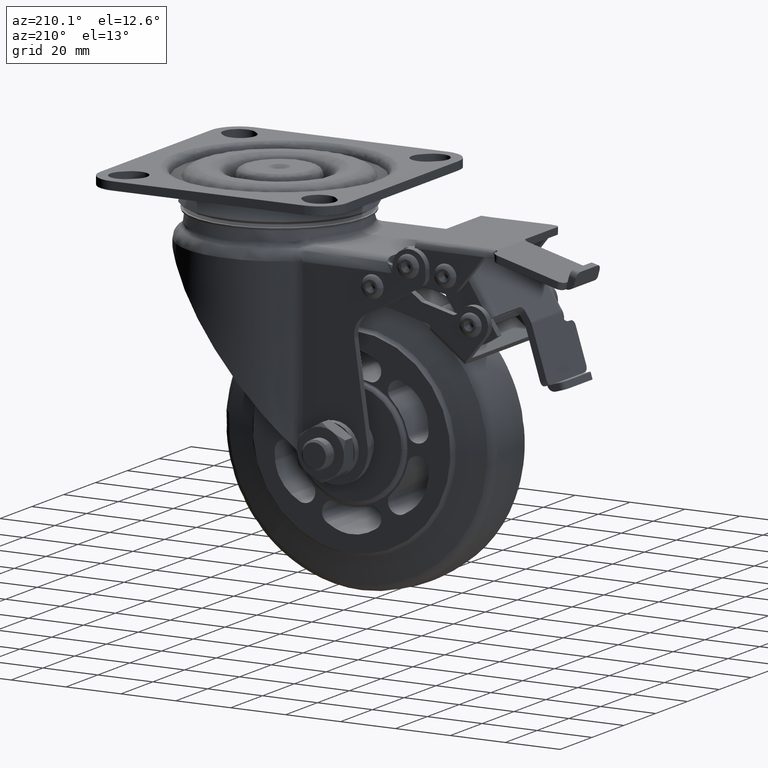
[diagram: clean part render]
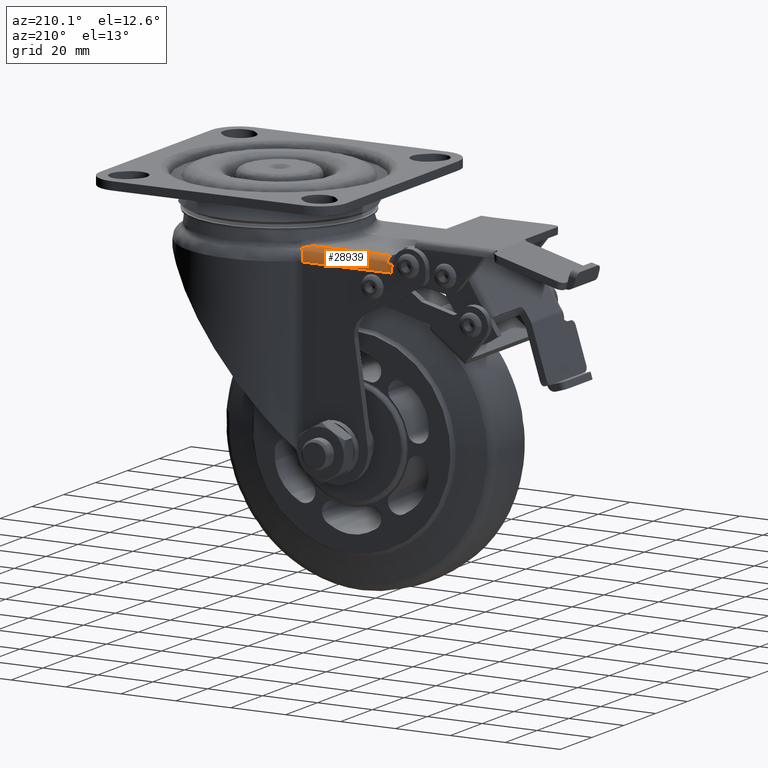
[diagram: same view with one face highlighted and labeled with its STEP entity id]
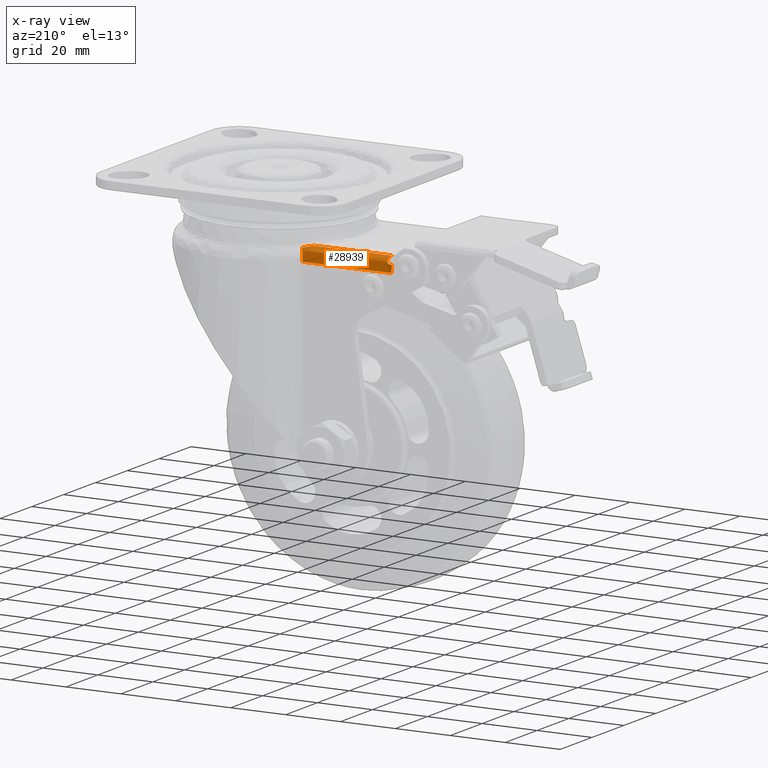
[diagram: x-ray of the same camera — body ghosted, the highlighted face saturated]
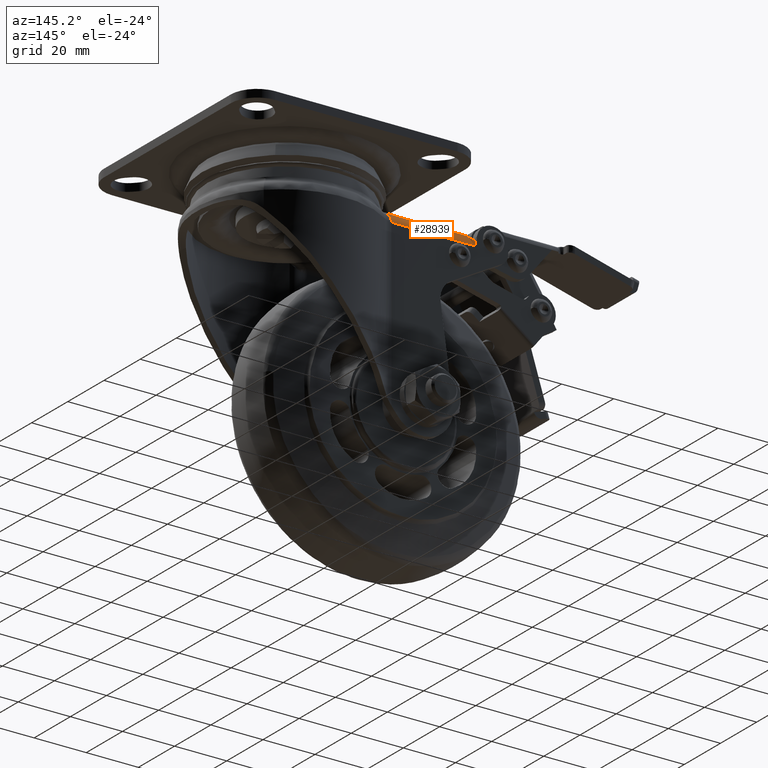
[diagram: same view with one face highlighted and labeled with its STEP entity id]
A machine part, auxiliary view. The second image highlights one B-rep face of the part: STEP entity #28939.
The next image is the same camera in x-ray: the body ghosted, the highlighted face saturated — about 0% of this face is hidden behind the body in this view.
A second angle (auxiliary view) of the same face is appended — the face is thin or edge-on in the first view.
In plain terms, the highlighted face is a freeform B-spline surface patch.
Its self-contained STEP definition (entity closure, byte-faithful):
#25044=CARTESIAN_POINT('',(13.384402241707100,23.221841364482451,62.613233633667093));
#25045=VERTEX_POINT('',#25044);
#25179=CARTESIAN_POINT('',(11.775535386729819,25.500000000000000,58.699997000000003));
#25180=VERTEX_POINT('',#25179);
#25189=CARTESIAN_POINT('',(13.384402241707100,23.221841364482451,62.613233633667093));
#25190=CARTESIAN_POINT('',(13.269976918085600,23.378054318299199,62.524539686699548));
#25191=CARTESIAN_POINT('',(13.159514681548330,23.530096361075351,62.425892284808747));
#25192=CARTESIAN_POINT('',(12.999891339185430,23.751353477263379,62.262085553162578));
#25193=CARTESIAN_POINT('',(12.947697659267980,23.823968380966729,62.204837103572949));
#25194=CARTESIAN_POINT('',(12.845393079961809,23.966786357419839,62.084798364591478));
#25195=CARTESIAN_POINT('',(12.795363592241250,24.036877101986750,62.022078367020903));
#25196=CARTESIAN_POINT('',(12.650040561311160,24.241122448802500,61.827378306874273));
#25197=CARTESIAN_POINT('',(12.558969520364570,24.370005734275129,61.688289156557452));
#25198=CARTESIAN_POINT('',(12.388744224433619,24.612185905648509,61.390525134962381));
#25199=CARTESIAN_POINT('',(12.309582341451870,24.725494989337019,61.231864614611297));
#25200=CARTESIAN_POINT('',(12.200494583239360,24.882327424364640,60.977594506891883));
#25201=CARTESIAN_POINT('',(12.165614110343840,24.932600710405900,60.889714661694008));
#25202=CARTESIAN_POINT('',(12.100297797848279,25.026932773232350,60.710972938515162));
#25203=CARTESIAN_POINT('',(12.069773346931420,25.071117839270631,60.619965637934243));
#25204=CARTESIAN_POINT('',(11.984591773807789,25.194632665282601,60.342000937529221));
#25205=CARTESIAN_POINT('',(11.936290970820060,25.264969319042841,60.150127098594353));
#25206=CARTESIAN_POINT('',(11.877124765235550,25.351301481772371,59.851902188603397));
#25207=CARTESIAN_POINT('',(11.859625210794629,25.376872377990271,59.750752026742440));
#25208=CARTESIAN_POINT('',(11.836867907254099,25.410153923023689,59.596276454242791));
#25209=CARTESIAN_POINT('',(11.829852843538390,25.420418592466110,59.544216320364448));
#25210=CARTESIAN_POINT('',(11.817111683936471,25.439068847928919,59.439912236255893));
#25211=CARTESIAN_POINT('',(11.811376874647010,25.447467153118701,59.387629782881270));
#25212=CARTESIAN_POINT('',(11.785868122354410,25.484834078335538,59.125567257911797));
#25213=CARTESIAN_POINT('',(11.775535386729819,25.499999999999989,58.913846802860917));
#25214=CARTESIAN_POINT('',(11.775535386729819,25.500000000000000,58.699997000000003));
#25215=B_SPLINE_CURVE_WITH_KNOTS('',3,(#25189,#25190,#25191,#25192,#25193,#25194,#25195,#25196,#25197,#25198,#25199,#25200,#25201,#25202,#25203,#25204,#25205,#25206,#25207,#25208,#25209,#25210,#25211,#25212,#25213,#25214),.UNSPECIFIED.,.F.,.U.,(4,2,2,2,2,2,2,2,2,2,2,2,4),(0.0,0.125000000000001,0.187500000000001,0.250000000000000,0.375000000000000,0.500000000000000,0.562499999999998,0.624999999999996,0.749999999999995,0.812499999999996,0.843749999999997,0.874999999999998,1.0),.UNSPECIFIED.);
#25216=EDGE_CURVE('',#25045,#25180,#25215,.T.);
#25693=CARTESIAN_POINT('',(10.195766490375039,21.0,63.199997000000003));
#25694=VERTEX_POINT('',#25693);
#26033=CARTESIAN_POINT('',(10.195766490375039,21.0,63.199997000000003));
#26034=CARTESIAN_POINT('',(10.451578228573419,21.209182882047561,63.199997000000003));
#26035=CARTESIAN_POINT('',(10.709652653013480,21.412545689253822,63.185488639445893));
#26036=CARTESIAN_POINT('',(11.230593782674640,21.808003200698231,63.131357967120870));
#26037=CARTESIAN_POINT('',(11.493467988718580,22.000081180015620,63.091701182905041));
#26038=CARTESIAN_POINT('',(11.892009100352990,22.279263376046138,63.015410330597490));
#26039=CARTESIAN_POINT('',(12.025564826736330,22.370828859814480,62.987173555342913));
#26040=CARTESIAN_POINT('',(12.294236005670470,22.550832985625579,62.925393032359302));
#26041=CARTESIAN_POINT('',(12.429511286207591,22.639371560697789,62.891804726890477));
#26042=CARTESIAN_POINT('',(12.836483136131950,22.899142528911039,62.783919402281363));
#26043=CARTESIAN_POINT('',(13.109325521595510,23.064561472150729,62.702533362586543));
#26044=CARTESIAN_POINT('',(13.384402241707090,23.221841364482462,62.613233633667093));
#26045=B_SPLINE_CURVE_WITH_KNOTS('',3,(#26033,#26034,#26035,#26036,#26037,#26038,#26039,#26040,#26041,#26042,#26043,#26044),.UNSPECIFIED.,.F.,.U.,(4,2,2,2,2,4),(0.0,0.250000000000002,0.500000000000003,0.625000000000003,0.750000000000003,1.0),.UNSPECIFIED.);
#26046=EDGE_CURVE('',#25694,#25045,#26045,.T.);
#26695=CARTESIAN_POINT('',(-20.499999999999599,24.766438425688850,61.162504174709198));
#26696=VERTEX_POINT('',#26695);
#26697=CARTESIAN_POINT('',(-19.797885443345550,24.736865536305650,61.207153948332312));
#26698=VERTEX_POINT('',#26697);
#26699=CARTESIAN_POINT('',(-20.499999999999648,24.766438425688850,61.162504174709198));
#26700=CARTESIAN_POINT('',(-20.441782616241280,24.762413715293071,61.168660024341932));
#26701=CARTESIAN_POINT('',(-20.383527180323810,24.757640635911439,61.175923485427411));
#26702=CARTESIAN_POINT('',(-20.267144579757719,24.748075971475991,61.190378822520039));
#26703=CARTESIAN_POINT('',(-20.208945936124021,24.743323686445208,61.197510271813577));
#26704=CARTESIAN_POINT('',(-20.033922360990712,24.732158945930809,61.214190441216502));
#26705=CARTESIAN_POINT('',(-19.916646344539881,24.729053948900440,61.218796957666861));
#26706=CARTESIAN_POINT('',(-19.797885443345550,24.736865536305650,61.207153948332312));
#26707=B_SPLINE_CURVE_WITH_KNOTS('',3,(#26699,#26700,#26701,#26702,#26703,#26704,#26705,#26706),.UNSPECIFIED.,.F.,.U.,(4,2,2,4),(0.0,0.250000000000003,0.500000000000005,1.0),.UNSPECIFIED.);
#26708=EDGE_CURVE('',#26696,#26698,#26707,.T.);
#26864=CARTESIAN_POINT('',(-20.499999999999599,25.500000000000000,58.699997000000003));
#26865=VERTEX_POINT('',#26864);
#26866=CARTESIAN_POINT('',(-20.499999999999599,25.500000000000000,58.699997000000003));
#26867=CARTESIAN_POINT('',(-20.499999999999599,25.500357156948901,59.215760515487027));
#26868=CARTESIAN_POINT('',(-20.499999999999609,25.348956235618360,60.084033783030669));
#26869=CARTESIAN_POINT('',(-20.499999999999609,24.959571709071749,60.867198193371088));
#26870=CARTESIAN_POINT('',(-20.499999999999599,24.766438425688850,61.162504174709198));
#26871=B_SPLINE_CURVE_WITH_KNOTS('',3,(#26866,#26867,#26868,#26869,#26870),.UNSPECIFIED.,.F.,.U.,(4,1,4),(0.000000033243200,1.547142873341371,2.605732407483981),.UNSPECIFIED.);
#26872=EDGE_CURVE('',#26865,#26696,#26871,.T.);
#27327=CARTESIAN_POINT('',(-18.151530999999601,23.061552812808600,62.699997000000089));
#27328=VERTEX_POINT('',#27327);
#27329=CARTESIAN_POINT('',(-18.151530999999601,23.061552812808600,62.699997000000089));
#27330=CARTESIAN_POINT('',(-18.151530999999611,23.180399512505652,62.638744812986722));
#27331=CARTESIAN_POINT('',(-18.155251215529269,23.295489284445409,62.572731828443622));
#27332=CARTESIAN_POINT('',(-18.173983362826409,23.518058037632180,62.431850403546257));
#27333=CARTESIAN_POINT('',(-18.188961340494672,23.625538591877490,62.356977150107681));
#27334=CARTESIAN_POINT('',(-18.223689582261219,23.780845552171272,62.238518893940892));
#27335=CARTESIAN_POINT('',(-18.237321478799899,23.831627387528211,62.198008435058412));
#27336=CARTESIAN_POINT('',(-18.269574423747031,23.931159001194210,62.115037932597630));
#27337=CARTESIAN_POINT('',(-18.288297123384162,23.980075713461730,62.072409792700860));
#27338=CARTESIAN_POINT('',(-18.352195370803909,24.120809366148588,61.944473245791798));
#27339=CARTESIAN_POINT('',(-18.405182051603550,24.207480345313041,61.858411004722932));
#27340=CARTESIAN_POINT('',(-18.505193510809491,24.326557723050751,61.731067934985049));
#27341=CARTESIAN_POINT('',(-18.542137120861621,24.364481734066651,61.688830420362770));
#27342=CARTESIAN_POINT('',(-18.621609042288782,24.434592197635670,61.607992699702102));
#27343=CARTESIAN_POINT('',(-18.664342071260180,24.467066610512930,61.569094382602430));
#27344=CARTESIAN_POINT('',(-18.756242106653620,24.527045461903160,61.495032059218033));
#27345=CARTESIAN_POINT('',(-18.805404254187369,24.554552149767659,61.459863993437651));
#27346=CARTESIAN_POINT('',(-18.884497643169830,24.592106188121651,61.410568864935357));
#27347=CARTESIAN_POINT('',(-18.911898722641990,24.604059155149550,61.394641577842712));
#27348=CARTESIAN_POINT('',(-18.967813890357821,24.626396329794460,61.364504732014993));
#27349=CARTESIAN_POINT('',(-18.996292085577061,24.636778896696018,61.350300671386542));
#27350=CARTESIAN_POINT('',(-19.083278481987559,24.665681306797349,61.310334474938983));
#27351=CARTESIAN_POINT('',(-19.143331332600720,24.681968901485639,61.287208022915557));
#27352=CARTESIAN_POINT('',(-19.236581765449738,24.702149516526578,61.258165861594676));
#27353=CARTESIAN_POINT('',(-19.268195454340042,24.708164755785209,61.249428746292509));
#27354=CARTESIAN_POINT('',(-19.332520104196909,24.718766824728078,61.233938867595562));
#27355=CARTESIAN_POINT('',(-19.365392325442130,24.723370872520260,61.227160613939539));
#27356=CARTESIAN_POINT('',(-19.530498511187432,24.742493419195430,61.198894433366249));
#27357=CARTESIAN_POINT('',(-19.663651629769170,24.745694866133348,61.193994014980767));
#27358=CARTESIAN_POINT('',(-19.797885443345550,24.736865536305672,61.207153948332270));
#27359=B_SPLINE_CURVE_WITH_KNOTS('',3,(#27329,#27330,#27331,#27332,#27333,#27334,#27335,#27336,#27337,#27338,#27339,#27340,#27341,#27342,#27343,#27344,#27345,#27346,#27347,#27348,#27349,#27350,#27351,#27352,#27353,#27354,#27355,#27356,#27357,#27358),.UNSPECIFIED.,.F.,.U.,(4,2,2,2,2,2,2,2,2,2,2,2,2,2,4),(0.0,0.124999999999999,0.249999999999998,0.312499999999998,0.374999999999997,0.499999999999991,0.562499999999990,0.624999999999988,0.687499999999987,0.718749999999989,0.749999999999991,0.812499999999994,0.843749999999995,0.874999999999997,1.0),.UNSPECIFIED.);
#27360=EDGE_CURVE('',#27328,#26698,#27359,.T.);
#27689=CARTESIAN_POINT('',(-18.151530999999700,21.0,63.199997000000089));
#27690=VERTEX_POINT('',#27689);
#27691=CARTESIAN_POINT('',(-18.151530999999700,21.0,63.199997000000089));
#27692=CARTESIAN_POINT('',(-18.151530999999789,21.714015965365132,63.200954589610127));
#27693=CARTESIAN_POINT('',(-18.151530999999672,22.427210465650059,63.027564827060019));
#27694=CARTESIAN_POINT('',(-18.151530999999601,23.061552812808600,62.699997000000089));
#27695=B_SPLINE_CURVE_WITH_KNOTS('',3,(#27691,#27692,#27693,#27694),.UNSPECIFIED.,.F.,.U.,(4,4),(0.000000020664963,2.141489855059260),.UNSPECIFIED.);
#27696=EDGE_CURVE('',#27690,#27328,#27695,.T.);
#28816=CARTESIAN_POINT('',(-20.499999999999599,25.500000000000000,58.699997000000003));
#28817=CARTESIAN_POINT('',(11.775535386729819,25.500000000000000,58.699997000000003));
#28818=QUASI_UNIFORM_CURVE('',1,(#28816,#28817),.UNSPECIFIED.,.F.,.U.);
#28819=EDGE_CURVE('',#26865,#25180,#28818,.T.);
#28911=CARTESIAN_POINT('',(14.231512297749770,25.495716997118361,58.503709756855997));
#28912=CARTESIAN_POINT('',(-21.368287807443330,25.495716997118450,58.503709756855997));
#28913=CARTESIAN_POINT('',(14.231512297749765,25.715705209335958,63.542268192903343));
#28914=CARTESIAN_POINT('',(-21.368287807443338,25.715705209335908,63.542268192903407));
#28915=CARTESIAN_POINT('',(14.231512297749761,20.684738583292468,63.188940109367223));
#28916=CARTESIAN_POINT('',(-21.368287807443345,20.684738583292376,63.188940109367223));
#28924=(BOUNDED_SURFACE()B_SPLINE_SURFACE(1,2,((#28911,#28913,#28915),(#28912,#28914,#28916)),.UNSPECIFIED.,.F.,.F.,.U.)B_SPLINE_SURFACE_WITH_KNOTS((2,2),(3,3),(0.0,35.599800105193111),(0.0,8.062841432313352),.UNSPECIFIED.)GEOMETRIC_REPRESENTATION_ITEM()RATIONAL_B_SPLINE_SURFACE(((1.0,0.664513898409564,0.996233561507358),(1.0,0.664513898409564,0.996233561507358)))REPRESENTATION_ITEM('')SURFACE());
#28925=ORIENTED_EDGE('',*,*,#26046,.T.);
#28926=ORIENTED_EDGE('',*,*,#25216,.T.);
#28927=ORIENTED_EDGE('',*,*,#28819,.F.);
#28928=ORIENTED_EDGE('',*,*,#26872,.T.);
#28929=ORIENTED_EDGE('',*,*,#26708,.T.);
#28930=ORIENTED_EDGE('',*,*,#27360,.F.);
#28931=ORIENTED_EDGE('',*,*,#27696,.F.);
#28932=CARTESIAN_POINT('',(10.195766490375039,21.0,63.199997000000003));
#28933=CARTESIAN_POINT('',(-18.151530999999700,21.0,63.199997000000089));
#28934=QUASI_UNIFORM_CURVE('',1,(#28932,#28933),.UNSPECIFIED.,.F.,.U.);
#28935=EDGE_CURVE('',#25694,#27690,#28934,.T.);
#28936=ORIENTED_EDGE('',*,*,#28935,.F.);
#28937=EDGE_LOOP('',(#28925,#28926,#28927,#28928,#28929,#28930,#28931,#28936));
#28938=FACE_OUTER_BOUND('',#28937,.T.);
#28939=ADVANCED_FACE('',(#28938),#28924,.T.);